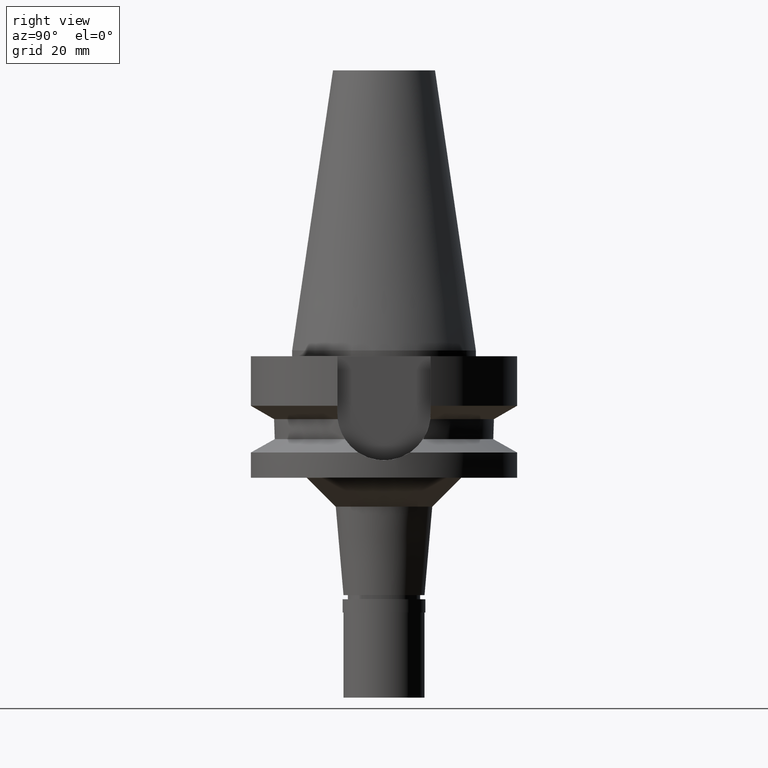
[diagram: clean part render]
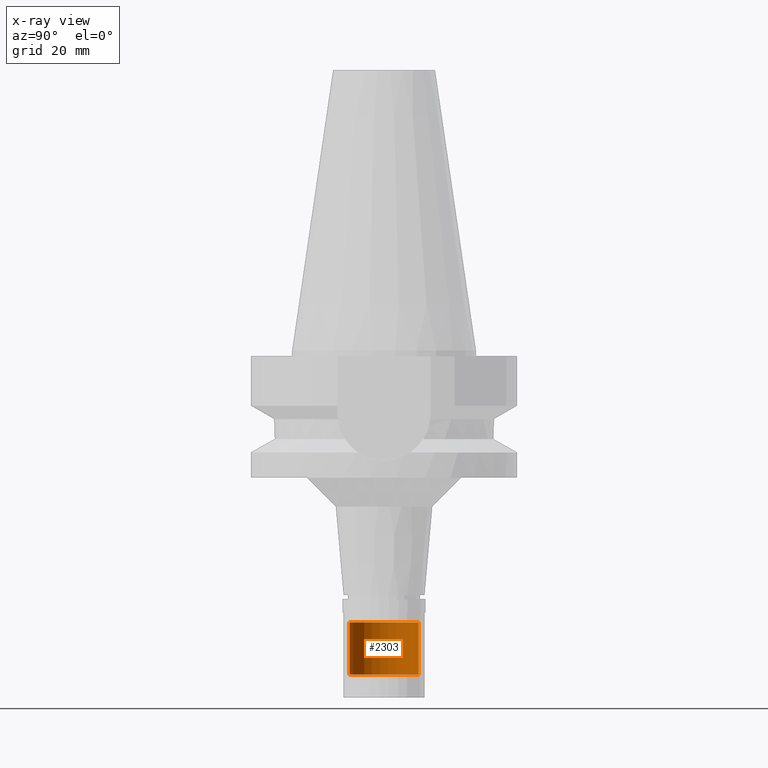
[diagram: x-ray — body ghosted, one internal face saturated and labeled with its STEP entity id]
A machine part, right view, then the same camera in x-ray: the body is ghosted and one INTERNAL B-rep face — a face not visible from any outside direction — is saturated and labeled: STEP entity #2303.
In plain terms, the highlighted cylindrical surface (edge-blend (fillet) strip) has radius 6 mm, axis along (0, 0, -1).
Its self-contained STEP definition (entity closure, byte-faithful):
#189 = CARTESIAN_POINT ( 'NONE',  ( 0.0000000000000000000, -6.000000000000000000, -56.00000000000000000 ) ) ;
#266 = VERTEX_POINT ( 'NONE', #957 ) ;
#272 = ORIENTED_EDGE ( 'NONE', *, *, #1754, .F. ) ;
#398 = DIRECTION ( 'NONE',  ( 0.0000000000000000000, 0.0000000000000000000, 1.000000000000000000 ) ) ;
#416 = DIRECTION ( 'NONE',  ( 0.0000000000000000000, 1.000000000000000000, 0.0000000000000000000 ) ) ;
#433 = LINE ( 'NONE', #2033, #1414 ) ;
#611 = AXIS2_PLACEMENT_3D ( 'NONE', #2795, #1659, #2351 ) ;
#649 = DIRECTION ( 'NONE',  ( 0.0000000000000000000, 0.0000000000000000000, -1.000000000000000000 ) ) ;
#679 = CARTESIAN_POINT ( 'NONE',  ( 0.0000000000000000000, 6.000000000000000000, -47.00000000000000000 ) ) ;
#705 = FACE_OUTER_BOUND ( 'NONE', #1359, .T. ) ;
#720 = CYLINDRICAL_SURFACE ( 'NONE', #611, 6.000000000000000000 ) ;
#760 = VERTEX_POINT ( 'NONE', #2708 ) ;
#766 = CARTESIAN_POINT ( 'NONE',  ( 0.0000000000000000000, 6.000000000000000000, -56.00000000000000000 ) ) ;
#899 = CARTESIAN_POINT ( 'NONE',  ( 0.0000000000000000000, 1.881302412850000052E-14, -47.00000000000000000 ) ) ;
#918 = DIRECTION ( 'NONE',  ( 0.0000000000000000000, -1.000000000000000000, 0.0000000000000000000 ) ) ;
#941 = CARTESIAN_POINT ( 'NONE',  ( 0.0000000000000000000, 1.881302412850000052E-14, -56.00000000000000000 ) ) ;
#957 = CARTESIAN_POINT ( 'NONE',  ( 0.0000000000000000000, -6.000000000000000000, -47.00000000000000000 ) ) ;
#1011 = EDGE_CURVE ( 'NONE', #1839, #2059, #2182, .T. ) ;
#1191 = AXIS2_PLACEMENT_3D ( 'NONE', #899, #1815, #918 ) ;
#1295 = DIRECTION ( 'NONE',  ( 0.0000000000000000000, 0.0000000000000000000, -1.000000000000000000 ) ) ;
#1359 = EDGE_LOOP ( 'NONE', ( #1763, #272, #1712, #1688 ) ) ;
#1414 = VECTOR ( 'NONE', #1295, 1000.000000000000000 ) ;
#1659 = DIRECTION ( 'NONE',  ( 0.0000000000000000000, 0.0000000000000000000, -1.000000000000000000 ) ) ;
#1688 = ORIENTED_EDGE ( 'NONE', *, *, #2737, .T. ) ;
#1712 = ORIENTED_EDGE ( 'NONE', *, *, #2883, .T. ) ;
#1754 = EDGE_CURVE ( 'NONE', #266, #2059, #433, .T. ) ;
#1763 = ORIENTED_EDGE ( 'NONE', *, *, #1011, .T. ) ;
#1815 = DIRECTION ( 'NONE',  ( 0.0000000000000000000, 0.0000000000000000000, -1.000000000000000000 ) ) ;
#1839 = VERTEX_POINT ( 'NONE', #766 ) ;
#2033 = CARTESIAN_POINT ( 'NONE',  ( 0.0000000000000000000, -6.000000000000000000, -47.00000000000000000 ) ) ;
#2059 = VERTEX_POINT ( 'NONE', #189 ) ;
#2124 = VECTOR ( 'NONE', #649, 1000.000000000000000 ) ;
#2182 = CIRCLE ( 'NONE', #2230, 6.000000000000000000 ) ;
#2230 = AXIS2_PLACEMENT_3D ( 'NONE', #941, #398, #416 ) ;
#2303 = ADVANCED_FACE ( 'NONE', ( #705 ), #720, .T. ) ;
#2351 = DIRECTION ( 'NONE',  ( 0.0000000000000000000, -1.000000000000000000, 0.0000000000000000000 ) ) ;
#2697 = LINE ( 'NONE', #679, #2124 ) ;
#2708 = CARTESIAN_POINT ( 'NONE',  ( 0.0000000000000000000, 6.000000000000000000, -47.00000000000000000 ) ) ;
#2737 = EDGE_CURVE ( 'NONE', #760, #1839, #2697, .T. ) ;
#2780 = CIRCLE ( 'NONE', #1191, 6.000000000000000000 ) ;
#2795 = CARTESIAN_POINT ( 'NONE',  ( 0.0000000000000000000, 1.881302412850000052E-14, 53.62000000000000455 ) ) ;
#2883 = EDGE_CURVE ( 'NONE', #266, #760, #2780, .T. ) ;